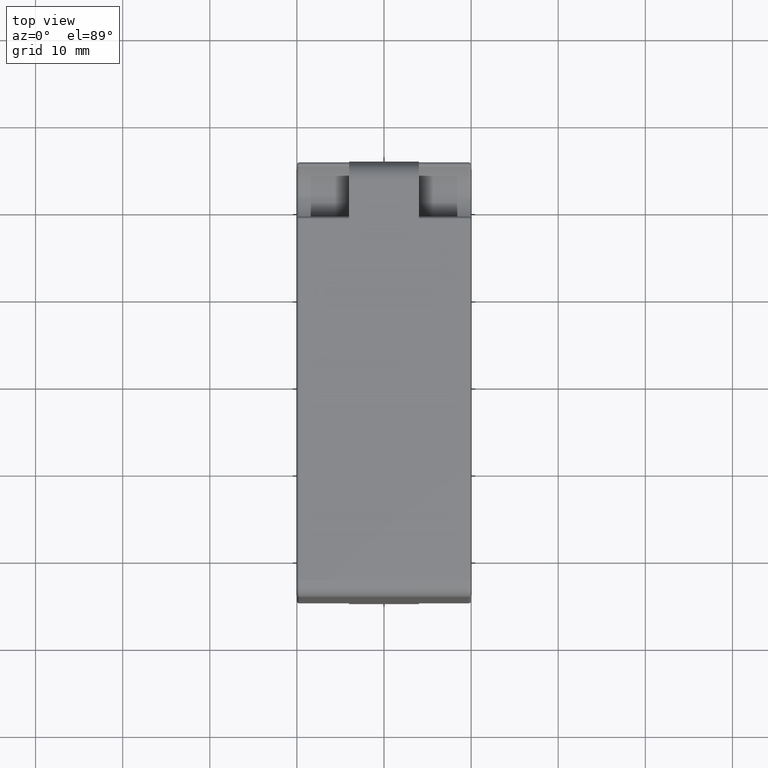
[diagram: clean part render]
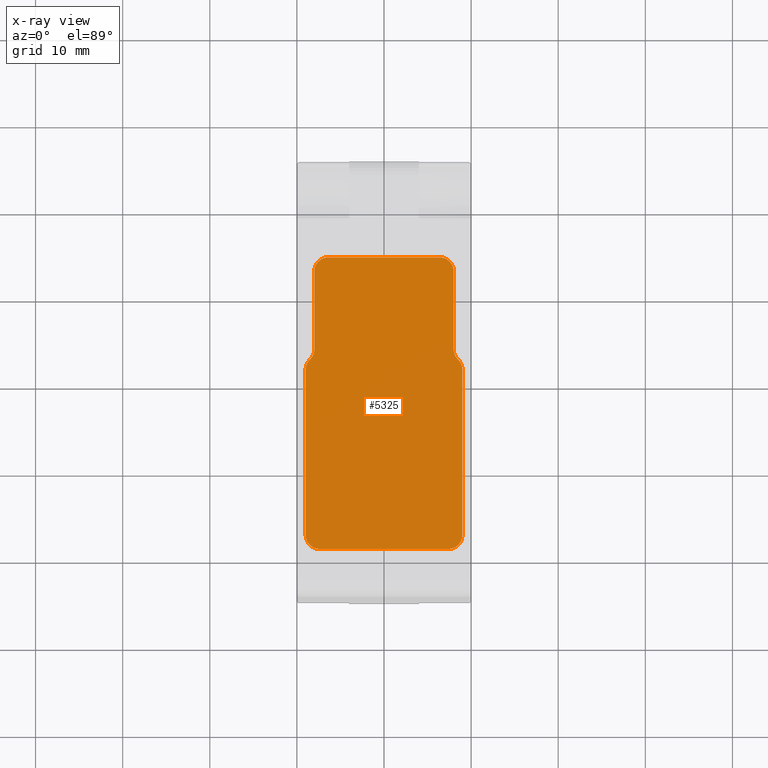
[diagram: x-ray — body ghosted, one internal face saturated and labeled with its STEP entity id]
A machine part, top view, then the same camera in x-ray: the body is ghosted and one INTERNAL B-rep face — a face not visible from any outside direction — is saturated and labeled: STEP entity #5325.
In plain terms, the highlighted planar face has unit normal (0, 0, 1).
Its self-contained STEP definition (entity closure, byte-faithful):
#278 = CARTESIAN_POINT ( 'NONE',  ( -7.399999998999874200, -17.90000000000005200, 24.00000000000000000 ) ) ;
#418 = CARTESIAN_POINT ( 'NONE',  ( 8.000000000499913000, 3.423790007300056000, 24.00000000000000000 ) ) ;
#433 = DIRECTION ( 'NONE',  ( 0.0000000000000000000, 0.0000000000000000000, 1.000000000000000000 ) ) ;
#751 = CARTESIAN_POINT ( 'NONE',  ( -9.599999999500026200, 3.423790007251017900, 24.00000000000000000 ) ) ;
#894 = DIRECTION ( 'NONE',  ( -0.0000000000000000000, 1.000000000000000000, -0.0000000000000000000 ) ) ;
#1186 = LINE ( 'NONE', #9685, #3757 ) ;
#1245 = ORIENTED_EDGE ( 'NONE', *, *, #14063, .F. ) ;
#1309 = ORIENTED_EDGE ( 'NONE', *, *, #13708, .F. ) ;
#1370 = DIRECTION ( 'NONE',  ( 1.000000000000000000, 0.0000000000000000000, 0.0000000000000000000 ) ) ;
#1372 = CARTESIAN_POINT ( 'NONE',  ( -7.399999998999874200, -19.49999999999994700, 24.00000000000000000 ) ) ;
#1474 = DIRECTION ( 'NONE',  ( -1.000000000000000000, -1.355252715606880500E-016, 0.0000000000000000000 ) ) ;
#1621 = LINE ( 'NONE', #5435, #12563 ) ;
#1640 = EDGE_CURVE ( 'NONE', #10006, #11291, #11673, .T. ) ;
#1696 = CARTESIAN_POINT ( 'NONE',  ( -6.399999999499463900, 13.99999999999948300, 24.00000000000000000 ) ) ;
#1864 = DIRECTION ( 'NONE',  ( 1.000000000000000000, 0.0000000000000000000, 0.0000000000000000000 ) ) ;
#2307 = CARTESIAN_POINT ( 'NONE',  ( -8.999999998999875600, -17.90000000000005500, 24.00000000000000000 ) ) ;
#2508 = VECTOR ( 'NONE', #1474, 1000.000000000000000 ) ;
#2509 = DIRECTION ( 'NONE',  ( 6.957284331094396300E-015, -1.000000000000000000, -0.0000000000000000000 ) ) ;
#2561 = AXIS2_PLACEMENT_3D ( 'NONE', #13087, #6598, #14183 ) ;
#2588 = AXIS2_PLACEMENT_3D ( 'NONE', #7038, #433, #8139 ) ;
#2955 = ORIENTED_EDGE ( 'NONE', *, *, #13177, .F. ) ;
#2988 = DIRECTION ( 'NONE',  ( -0.0000000000000000000, -0.0000000000000000000, -1.000000000000000000 ) ) ;
#3169 = ORIENTED_EDGE ( 'NONE', *, *, #6777, .F. ) ;
#3188 = PLANE ( 'NONE',  #12139 ) ;
#3421 = CARTESIAN_POINT ( 'NONE',  ( -8.999999998999875600, 1.099999999999948600, 24.00000000000000000 ) ) ;
#3564 = CARTESIAN_POINT ( 'NONE',  ( -7.999999999500024800, 3.423790007251018300, 24.00000000000000000 ) ) ;
#3663 = ORIENTED_EDGE ( 'NONE', *, *, #1640, .F. ) ;
#3757 = VECTOR ( 'NONE', #11848, 1000.000000000000000 ) ;
#3802 = CARTESIAN_POINT ( 'NONE',  ( 7.400000000000125600, -17.89999999999994900, 24.00000000000000000 ) ) ;
#3817 = VERTEX_POINT ( 'NONE', #10877 ) ;
#4354 = CARTESIAN_POINT ( 'NONE',  ( -6.399999999500090900, 12.39999999999995400, 24.00000000000000000 ) ) ;
#4940 = DIRECTION ( 'NONE',  ( 1.000000000000000000, 0.0000000000000000000, 0.0000000000000000000 ) ) ;
#4977 = AXIS2_PLACEMENT_3D ( 'NONE', #12389, #5902, #13487 ) ;
#5325 = ADVANCED_FACE ( 'NONE', ( #10535 ), #3188, .F. ) ;
#5435 = CARTESIAN_POINT ( 'NONE',  ( 7.400000000000124700, -19.49999999999994700, 24.00000000000000000 ) ) ;
#5457 = LINE ( 'NONE', #8069, #2508 ) ;
#5458 = CARTESIAN_POINT ( 'NONE',  ( 8.999999999999992900, 1.100000000048962000, 24.00000000000000000 ) ) ;
#5459 = CIRCLE ( 'NONE', #11352, 1.600000000000000800 ) ;
#5476 = DIRECTION ( 'NONE',  ( 1.000000000000000000, 0.0000000000000000000, -0.0000000000000000000 ) ) ;
#5495 = CARTESIAN_POINT ( 'NONE',  ( 8.000000000499913000, 12.40000000000005700, 24.00000000000000000 ) ) ;
#5539 = EDGE_CURVE ( 'NONE', #6797, #7457, #11427, .T. ) ;
#5544 = VECTOR ( 'NONE', #2509, 1000.000000000000000 ) ;
#5694 = EDGE_CURVE ( 'NONE', #3817, #13077, #5459, .T. ) ;
#5700 = ORIENTED_EDGE ( 'NONE', *, *, #7387, .F. ) ;
#5902 = DIRECTION ( 'NONE',  ( 0.0000000000000000000, 0.0000000000000000000, 1.000000000000000000 ) ) ;
#5992 = CARTESIAN_POINT ( 'NONE',  ( 6.400000000500536900, 12.40000000000010900, 24.00000000000000000 ) ) ;
#6079 = LINE ( 'NONE', #2307, #11357 ) ;
#6216 = ORIENTED_EDGE ( 'NONE', *, *, #5539, .F. ) ;
#6598 = DIRECTION ( 'NONE',  ( 0.0000000000000000000, 0.0000000000000000000, 1.000000000000000000 ) ) ;
#6718 = EDGE_CURVE ( 'NONE', #13077, #6797, #7659, .T. ) ;
#6777 = EDGE_CURVE ( 'NONE', #7658, #10675, #10344, .T. ) ;
#6797 = VERTEX_POINT ( 'NONE', #5495 ) ;
#6822 = ORIENTED_EDGE ( 'NONE', *, *, #6718, .F. ) ;
#6846 = AXIS2_PLACEMENT_3D ( 'NONE', #3802, #11464, #4940 ) ;
#6849 = CIRCLE ( 'NONE', #2588, 1.599999999999762300 ) ;
#6875 = VERTEX_POINT ( 'NONE', #7898 ) ;
#6908 = AXIS2_PLACEMENT_3D ( 'NONE', #278, #7978, #1370 ) ;
#6914 = VERTEX_POINT ( 'NONE', #1372 ) ;
#6963 = CARTESIAN_POINT ( 'NONE',  ( 6.400000000500536900, 13.99999999999948500, 24.00000000000000000 ) ) ;
#7038 = CARTESIAN_POINT ( 'NONE',  ( -6.399999999500090900, 12.39999999999995400, 24.00000000000000000 ) ) ;
#7065 = EDGE_CURVE ( 'NONE', #10675, #12140, #6079, .T. ) ;
#7080 = DIRECTION ( 'NONE',  ( 1.000000000000000000, 0.0000000000000000000, 0.0000000000000000000 ) ) ;
#7177 = CARTESIAN_POINT ( 'NONE',  ( -8.499999999249972400, 2.261895003625434200, 24.00000000000000000 ) ) ;
#7387 = EDGE_CURVE ( 'NONE', #12140, #6914, #12087, .T. ) ;
#7457 = VERTEX_POINT ( 'NONE', #6963 ) ;
#7525 = CARTESIAN_POINT ( 'NONE',  ( 8.000000000499913000, 12.40000000000005700, 24.00000000000000000 ) ) ;
#7658 = VERTEX_POINT ( 'NONE', #7177 ) ;
#7659 = LINE ( 'NONE', #7525, #12723 ) ;
#7871 = EDGE_CURVE ( 'NONE', #6914, #12942, #1621, .T. ) ;
#7898 = CARTESIAN_POINT ( 'NONE',  ( 8.999999999999998200, -17.90000000000007300, 24.00000000000000000 ) ) ;
#7903 = CIRCLE ( 'NONE', #6846, 1.599999999999936600 ) ;
#7978 = DIRECTION ( 'NONE',  ( 0.0000000000000000000, 0.0000000000000000000, 1.000000000000000000 ) ) ;
#8069 = CARTESIAN_POINT ( 'NONE',  ( 6.400000000500536900, 13.99999999999948500, 24.00000000000000000 ) ) ;
#8139 = DIRECTION ( 'NONE',  ( 1.000000000000000000, 0.0000000000000000000, 0.0000000000000000000 ) ) ;
#8464 = DIRECTION ( 'NONE',  ( -0.0000000000000000000, -0.0000000000000000000, -1.000000000000000000 ) ) ;
#8756 = VERTEX_POINT ( 'NONE', #1696 ) ;
#9012 = ORIENTED_EDGE ( 'NONE', *, *, #7871, .F. ) ;
#9077 = CIRCLE ( 'NONE', #4977, 1.600000000000000800 ) ;
#9115 = AXIS2_PLACEMENT_3D ( 'NONE', #751, #8464, #1864 ) ;
#9210 = EDGE_CURVE ( 'NONE', #12862, #3817, #9077, .T. ) ;
#9296 = ORIENTED_EDGE ( 'NONE', *, *, #7065, .F. ) ;
#9428 = ORIENTED_EDGE ( 'NONE', *, *, #10159, .F. ) ;
#9437 = AXIS2_PLACEMENT_3D ( 'NONE', #5992, #13580, #7080 ) ;
#9557 = CARTESIAN_POINT ( 'NONE',  ( 9.600000000499912600, 3.423790007300125300, 24.00000000000000000 ) ) ;
#9591 = CARTESIAN_POINT ( 'NONE',  ( -8.999999998999824100, -17.90000000000005500, 24.00000000000000000 ) ) ;
#9685 = CARTESIAN_POINT ( 'NONE',  ( 8.999999999999992900, 1.100000000048962000, 24.00000000000000000 ) ) ;
#10006 = VERTEX_POINT ( 'NONE', #12124 ) ;
#10027 = CARTESIAN_POINT ( 'NONE',  ( 7.400000000000123800, -19.49999999999988600, 24.00000000000000000 ) ) ;
#10136 = CARTESIAN_POINT ( 'NONE',  ( -7.999999999500024800, 3.423790007251017900, 24.00000000000000000 ) ) ;
#10159 = EDGE_CURVE ( 'NONE', #7457, #8756, #5457, .T. ) ;
#10344 = CIRCLE ( 'NONE', #2561, 1.599999999999933000 ) ;
#10535 = FACE_OUTER_BOUND ( 'NONE', #12742, .T. ) ;
#10648 = DIRECTION ( 'NONE',  ( 1.000000000000000000, 0.0000000000000000000, 0.0000000000000000000 ) ) ;
#10675 = VERTEX_POINT ( 'NONE', #3421 ) ;
#10877 = CARTESIAN_POINT ( 'NONE',  ( 8.500000000250345500, 2.261895003674173000, 24.00000000000000000 ) ) ;
#11112 = DIRECTION ( 'NONE',  ( -0.0000000000000000000, -1.000000000000000000, -0.0000000000000000000 ) ) ;
#11124 = ORIENTED_EDGE ( 'NONE', *, *, #13261, .F. ) ;
#11291 = VERTEX_POINT ( 'NONE', #10136 ) ;
#11352 = AXIS2_PLACEMENT_3D ( 'NONE', #9557, #2988, #10648 ) ;
#11357 = VECTOR ( 'NONE', #11112, 1000.000000000000000 ) ;
#11427 = CIRCLE ( 'NONE', #9437, 1.599999999999376100 ) ;
#11464 = DIRECTION ( 'NONE',  ( 0.0000000000000000000, 0.0000000000000000000, 1.000000000000000000 ) ) ;
#11673 = LINE ( 'NONE', #3564, #5544 ) ;
#11848 = DIRECTION ( 'NONE',  ( -2.739037067324732400E-016, 1.000000000000000000, -0.0000000000000000000 ) ) ;
#11973 = DIRECTION ( 'NONE',  ( 0.0000000000000000000, 0.0000000000000000000, 1.000000000000000000 ) ) ;
#12087 = CIRCLE ( 'NONE', #6908, 1.599999999999949500 ) ;
#12124 = CARTESIAN_POINT ( 'NONE',  ( -7.999999999500087900, 12.39999999999994500, 24.00000000000000000 ) ) ;
#12139 = AXIS2_PLACEMENT_3D ( 'NONE', #4354, #11973, #5476 ) ;
#12140 = VERTEX_POINT ( 'NONE', #9591 ) ;
#12297 = CIRCLE ( 'NONE', #9115, 1.600000000000000800 ) ;
#12389 = CARTESIAN_POINT ( 'NONE',  ( 7.399999999999991500, 1.100000000048962000, 24.00000000000000000 ) ) ;
#12563 = VECTOR ( 'NONE', #13020, 1000.000000000000000 ) ;
#12723 = VECTOR ( 'NONE', #894, 1000.000000000000000 ) ;
#12733 = ORIENTED_EDGE ( 'NONE', *, *, #5694, .F. ) ;
#12742 = EDGE_LOOP ( 'NONE', ( #1245, #9428, #6216, #6822, #12733, #12906, #11124, #1309, #9012, #5700, #9296, #3169, #2955, #3663 ) ) ;
#12862 = VERTEX_POINT ( 'NONE', #5458 ) ;
#12906 = ORIENTED_EDGE ( 'NONE', *, *, #9210, .F. ) ;
#12942 = VERTEX_POINT ( 'NONE', #10027 ) ;
#13020 = DIRECTION ( 'NONE',  ( 1.000000000000000000, -0.0000000000000000000, -0.0000000000000000000 ) ) ;
#13077 = VERTEX_POINT ( 'NONE', #418 ) ;
#13087 = CARTESIAN_POINT ( 'NONE',  ( -7.399999999000008300, 1.099999999999948400, 24.00000000000000000 ) ) ;
#13177 = EDGE_CURVE ( 'NONE', #11291, #7658, #12297, .T. ) ;
#13261 = EDGE_CURVE ( 'NONE', #6875, #12862, #1186, .T. ) ;
#13487 = DIRECTION ( 'NONE',  ( 1.000000000000000000, 0.0000000000000000000, 0.0000000000000000000 ) ) ;
#13580 = DIRECTION ( 'NONE',  ( 0.0000000000000000000, 0.0000000000000000000, 1.000000000000000000 ) ) ;
#13708 = EDGE_CURVE ( 'NONE', #12942, #6875, #7903, .T. ) ;
#14063 = EDGE_CURVE ( 'NONE', #8756, #10006, #6849, .T. ) ;
#14183 = DIRECTION ( 'NONE',  ( 1.000000000000000000, 0.0000000000000000000, 0.0000000000000000000 ) ) ;